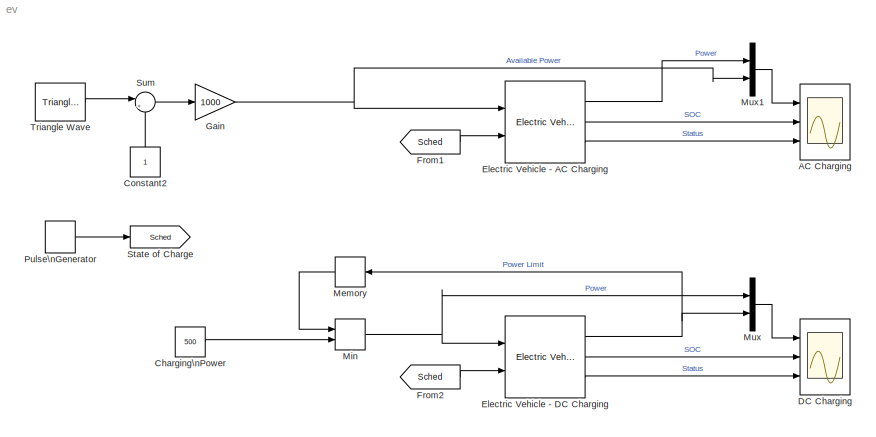
MODEL ev
KIND model
BLOCK [Scope] AC Charging
  DataFormat = StructureWithTime
  Floating = off
  LegendLocations = 0.49331     0.90679     0.41358     0.04586\n0.65844     0.61401     0.24691    0.025902\n0.63374     0.30191      0.2716    0.025902
  LimitDataPoints = off
  NumInputPorts = 3
  Ports = [3]
  SID = 27
  SampleTime = 0
  SaveName = ScopeData1
  ShowLegends = on
  TimeRange = 15000
  YMax = 2000~1~1
  YMin = 0~0~-1
  ZoomMode = xonly
BLOCK [Constant] Charging\nPower
  SID = 1
  Value = 500
BLOCK [Constant] Constant2
  SID = 22
BLOCK [Scope] DC Charging
  DataFormat = StructureWithTime
  Floating = off
  LegendLocations = 0.56121     0.90691     0.34568    0.045802\n0.65844      0.6145     0.24691    0.025869\n0.63374     0.30153      0.2716    0.025869
  LimitDataPoints = off
  NumInputPorts = 3
  Ports = [3]
  SID = 6
  SampleTime = 0
  ShowLegends = on
  TimeRange = 15000
  YMax = 1000~0.9~0
  YMin = 0~0~-1
  ZoomMode = yonly
BLOCK [Reference] Electric Vehicle - AC Charging  REF=CampusEnergyModeling/Electric Vehicles/Electric Vehicle
  Ports = [2, 3]
  SID = 12
  SourceBlock = CampusEnergyModeling/Electric Vehicles/Electric Vehicle
  SourceType = Electric Vehicle
  battEff = 0.98
  capacity = 1000
  chargerEff = 0.99
  ctype = AC
  initSOC = 0
  profile = on
  profileRate = [0.20 0.20 1.00 1.00 0.10 0.10]
  profileSOC = [0.00 0.10 0.20 0.80 0.99 1.00]
  rating = 1000
BLOCK [Reference] Electric Vehicle - DC Charging  REF=CampusEnergyModeling/Electric Vehicles/Electric Vehicle
  Ports = [2, 3]
  SID = 8
  SourceBlock = CampusEnergyModeling/Electric Vehicles/Electric Vehicle
  SourceType = Electric Vehicle
  battEff = 0.98
  capacity = 1000
  chargerEff = 0.96
  ctype = DC
  initSOC = 0
  profile = off
  profileRate = [0.10 0.20 1.00 1.00 0.01 0.00]
  profileSOC = [0.00 0.10 0.20 0.80 0.99 1.00]
  rating = 6240
BLOCK [From] From1
  GotoTag = Sched
  SID = 29
BLOCK [From] From2
  GotoTag = Sched
  SID = 31
BLOCK [Gain] Gain
  Gain = 1000
  OutDataTypeStr = Inherit: Inherit via internal rule
  ParamDataTypeStr = Inherit: Inherit via internal rule
  SID = 21
  SaturateOnIntegerOverflow = off
BLOCK [Memory] Memory
  SID = 24
BLOCK [MinMax] Min
  InputSameDT = off
  Inputs = 2
  Ports = [2, 1]
  SID = 23
  SaturateOnIntegerOverflow = off
BLOCK [Mux] Mux
  DisplayOption = bar
  Inputs = 2
  Ports = [2, 1]
  SID = 25
BLOCK [Mux] Mux1
  DisplayOption = bar
  Inputs = 2
  Ports = [2, 1]
  SID = 26
BLOCK [DiscretePulseGenerator] Pulse\nGenerator
  Period = 9000
  PhaseDelay = 1800
  Ports = [0, 1]
  PulseType = Time based
  PulseWidth = 90
  SID = 28
BLOCK [Goto] State of Charge
  GotoTag = Sched
  SID = 30
BLOCK [Sum] Sum
  IconShape = round
  InputSameDT = off
  Inputs = |++
  OutDataTypeStr = Inherit: Inherit via internal rule
  Ports = [2, 1]
  SID = 20
  SaturateOnIntegerOverflow = off
BLOCK [Reference] Triangle Wave  REF=powerlib_meascontrol/Pulse & Signal\nGenerators/Triangle\nGenerator
  Freq = 1/3600
  Phase = 0
  Ports = [0, 1]
  SID = 18
  SourceBlock = powerlib_meascontrol/Pulse & Signal\nGenerators/Triangle\nGenerator
  SourceType = Triangle Generator
  Ts = 0
LINE Charging\nPower:1 -> Min:2
LINE Constant2:1 -> Sum:2
LINE Electric Vehicle - AC Charging:1 -> Mux1:1
LINE Electric Vehicle - AC Charging:2 -> AC Charging:2
LINE Electric Vehicle - AC Charging:3 -> AC Charging:3
NET Electric Vehicle - DC Charging:1 -> Memory:1, Mux:2
LINE Electric Vehicle - DC Charging:2 -> DC Charging:2
LINE Electric Vehicle - DC Charging:3 -> DC Charging:3
LINE From1:1 -> Electric Vehicle - AC Charging:2
LINE From2:1 -> Electric Vehicle - DC Charging:2
NET Gain:1 -> Electric Vehicle - AC Charging:1, Mux1:2
LINE Memory:1 -> Min:1
NET Min:1 -> Electric Vehicle - DC Charging:1, Mux:1
LINE Mux1:1 -> AC Charging:1
LINE Mux:1 -> DC Charging:1
LINE Pulse\nGenerator:1 -> State of Charge:1
LINE Sum:1 -> Gain:1
LINE Triangle Wave:1 -> Sum:1
note: NET lines group one-source signal fan-out (src -> all destinations, sorted); 1:1 wires keep LINE
